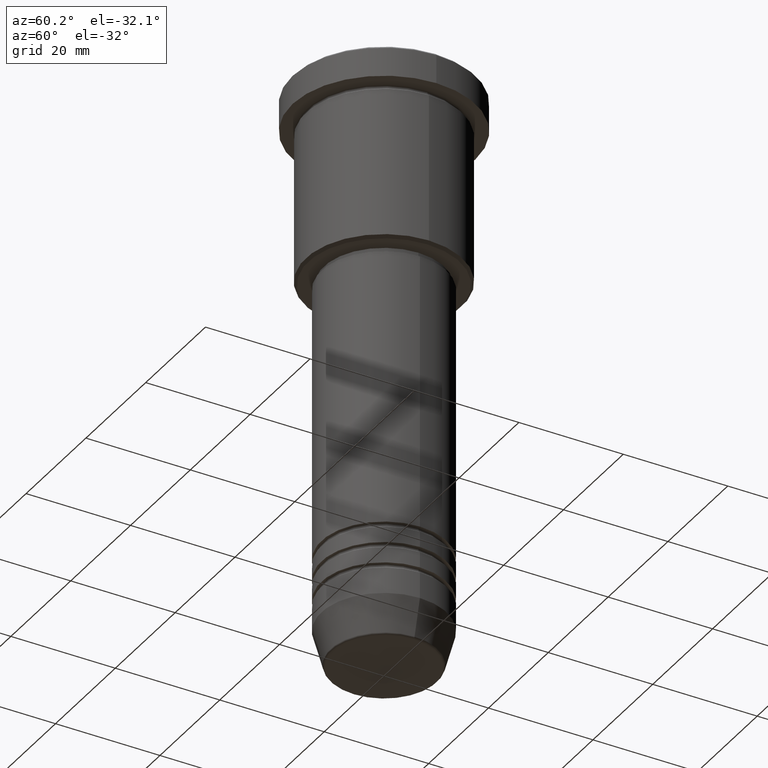
[diagram: clean part render]
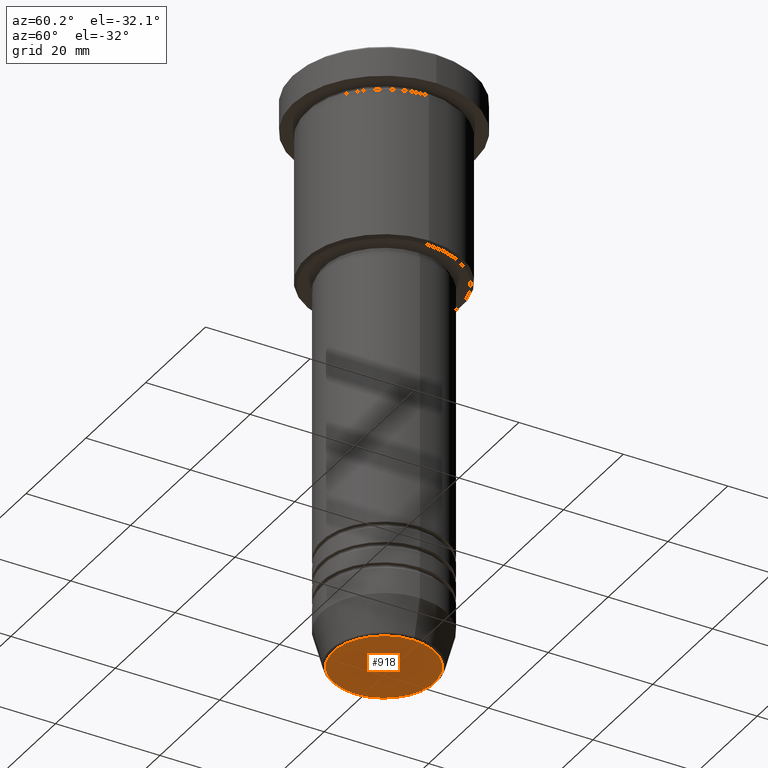
[diagram: same view with one face highlighted and labeled with its STEP entity id]
A machine part, auxiliary view. The second image highlights one B-rep face of the part: STEP entity #918.
In plain terms, the highlighted planar face has unit normal (0, -0, 1).
Its self-contained STEP definition (entity closure, byte-faithful):
#12 = AXIS2_PLACEMENT_3D ( 'NONE', #798, #76, #430 ) ;
#14 = AXIS2_PLACEMENT_3D ( 'NONE', #147, #210, #139 ) ;
#25 = EDGE_CURVE ( 'NONE', #229, #453, #731, .T. ) ;
#76 = DIRECTION ( 'NONE',  ( 0.000000000000000000, 0.000000000000000000, -1.000000000000000000 ) ) ;
#139 = DIRECTION ( 'NONE',  ( 1.000000000000000000, 0.000000000000000000, 0.000000000000000000 ) ) ;
#147 = CARTESIAN_POINT ( 'NONE',  ( 0.000000000000000000, 0.000000000000000000, -110.9999999999999858 ) ) ;
#166 = CARTESIAN_POINT ( 'NONE',  ( -9.740692158992658278, 1.222463696683474604E-15, -110.9999999999999858 ) ) ;
#181 = CIRCLE ( 'NONE', #12, 9.740692158992658278 ) ;
#210 = DIRECTION ( 'NONE',  ( 0.000000000000000000, 0.000000000000000000, -1.000000000000000000 ) ) ;
#229 = VERTEX_POINT ( 'NONE', #231 ) ;
#231 = CARTESIAN_POINT ( 'NONE',  ( 9.740692158992658278, 0.000000000000000000, -110.9999999999999858 ) ) ;
#278 = EDGE_CURVE ( 'NONE', #453, #229, #181, .T. ) ;
#342 = PLANE ( 'NONE',  #1112 ) ;
#382 = ORIENTED_EDGE ( 'NONE', *, *, #25, .T. ) ;
#430 = DIRECTION ( 'NONE',  ( 1.000000000000000000, 0.000000000000000000, 0.000000000000000000 ) ) ;
#453 = VERTEX_POINT ( 'NONE', #166 ) ;
#617 = CARTESIAN_POINT ( 'NONE',  ( 0.000000000000000000, 0.000000000000000000, -110.9999999999999858 ) ) ;
#699 = DIRECTION ( 'NONE',  ( 1.000000000000000000, 0.000000000000000000, 0.000000000000000000 ) ) ;
#716 = ORIENTED_EDGE ( 'NONE', *, *, #278, .T. ) ;
#731 = CIRCLE ( 'NONE', #14, 9.740692158992658278 ) ;
#773 = DIRECTION ( 'NONE',  ( 0.000000000000000000, -0.000000000000000000, 1.000000000000000000 ) ) ;
#798 = CARTESIAN_POINT ( 'NONE',  ( 0.000000000000000000, 0.000000000000000000, -110.9999999999999858 ) ) ;
#885 = EDGE_LOOP ( 'NONE', ( #382, #716 ) ) ;
#918 = ADVANCED_FACE ( 'NONE', ( #1160 ), #342, .F. ) ;
#1112 = AXIS2_PLACEMENT_3D ( 'NONE', #617, #773, #699 ) ;
#1160 = FACE_OUTER_BOUND ( 'NONE', #885, .T. ) ;